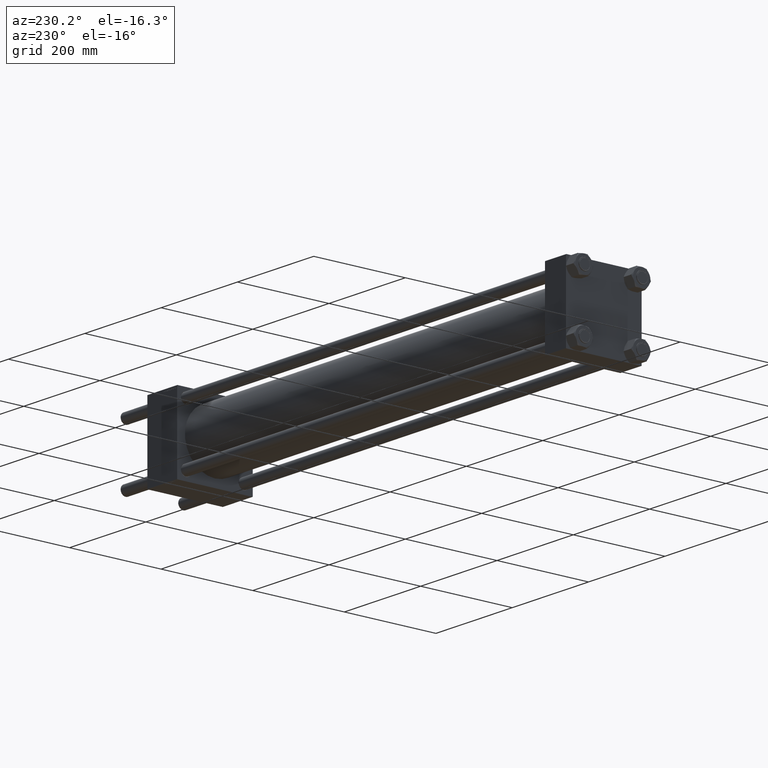
[diagram: clean part render]
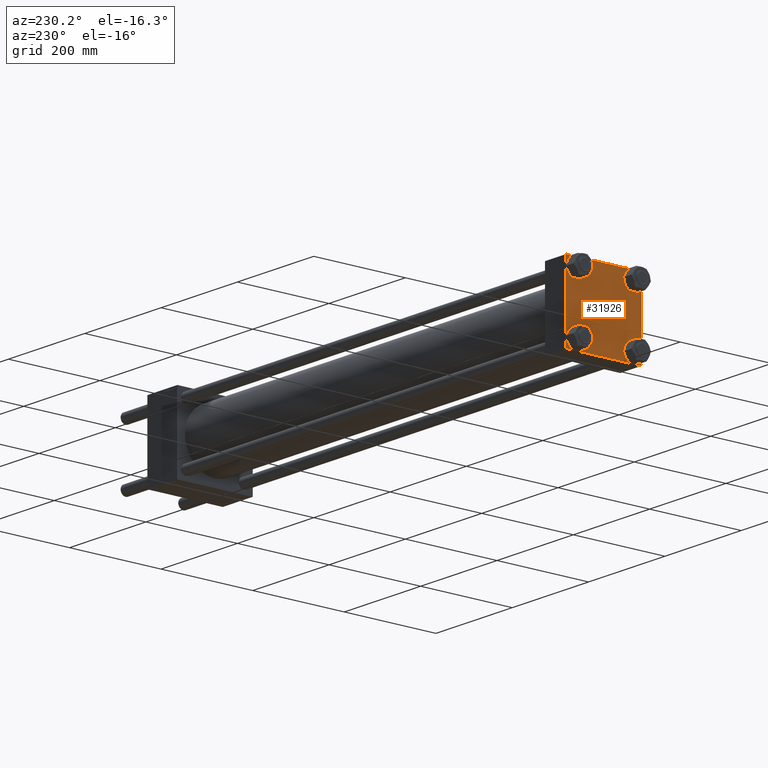
[diagram: same view with one face highlighted and labeled with its STEP entity id]
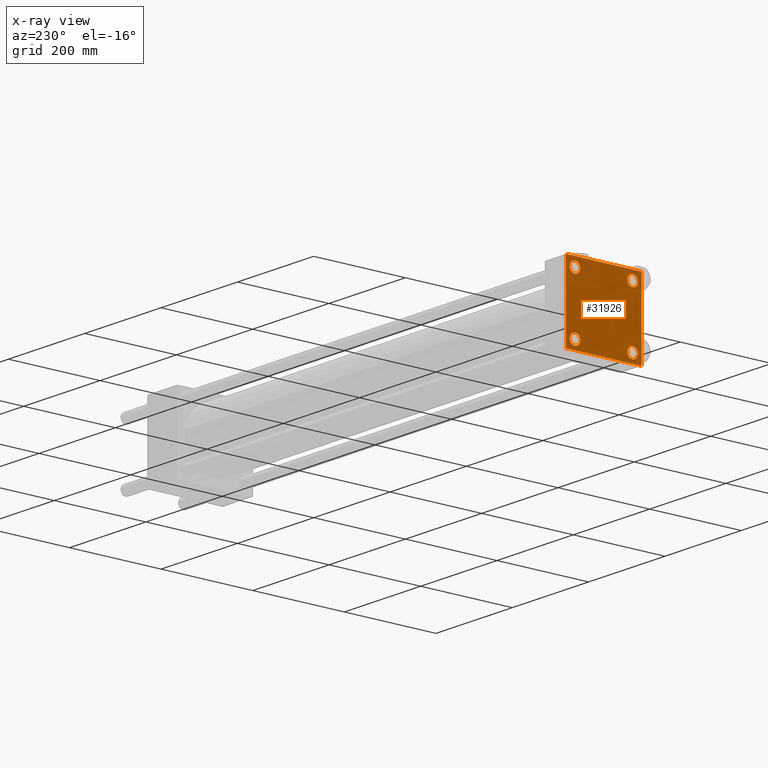
[diagram: x-ray of the same camera — body ghosted, the highlighted face saturated]
A machine part, auxiliary view. The second image highlights one B-rep face of the part: STEP entity #31926.
The next image is the same camera in x-ray: the body ghosted, the highlighted face saturated — about 0% of this face is hidden behind the body in this view.
In plain terms, the highlighted planar face has unit normal (-1, 0, 0).
Its self-contained STEP definition (entity closure, byte-faithful):
#1649 = CARTESIAN_POINT ( 'NONE',  ( 0.000000000000000000, 62.95000000000000284, -74.45000000000001705 ) ) ;
#2429 = DIRECTION ( 'NONE',  ( 1.000000000000000000, -0.000000000000000000, -0.000000000000000000 ) ) ;
#2689 = DIRECTION ( 'NONE',  ( 0.000000000000000000, 0.000000000000000000, 1.000000000000000000 ) ) ;
#2751 = VECTOR ( 'NONE', #7106, 1000.000000000000000 ) ;
#2949 = EDGE_CURVE ( 'NONE', #44777, #45989, #53933, .T. ) ;
#3088 = AXIS2_PLACEMENT_3D ( 'NONE', #30432, #4379, #39402 ) ;
#4139 = CARTESIAN_POINT ( 'NONE',  ( 0.000000000000000000, -81.99999999999997158, 82.50000000000001421 ) ) ;
#4379 = DIRECTION ( 'NONE',  ( 1.000000000000000000, -0.000000000000000000, -0.000000000000000000 ) ) ;
#4753 = CIRCLE ( 'NONE', #56531, 11.50000000000001066 ) ;
#5536 = DIRECTION ( 'NONE',  ( 0.000000000000000000, 0.000000000000000000, 1.000000000000000000 ) ) ;
#5625 = CARTESIAN_POINT ( 'NONE',  ( 0.000000000000000000, 82.50000000000002842, -82.00000000000000000 ) ) ;
#5805 = VECTOR ( 'NONE', #37496, 1000.000000000000114 ) ;
#6767 = CARTESIAN_POINT ( 'NONE',  ( 0.000000000000000000, -62.94999999999998153, -74.45000000000003126 ) ) ;
#7106 = DIRECTION ( 'NONE',  ( 0.000000000000000000, -1.000000000000000000, -8.410780489584519171E-17 ) ) ;
#7180 = EDGE_CURVE ( 'NONE', #55454, #25309, #18062, .T. ) ;
#8149 = VERTEX_POINT ( 'NONE', #41269 ) ;
#8839 = CARTESIAN_POINT ( 'NONE',  ( 0.000000000000000000, 62.95000000000000284, 62.95000000000000284 ) ) ;
#9852 = ORIENTED_EDGE ( 'NONE', *, *, #55303, .T. ) ;
#10263 = AXIS2_PLACEMENT_3D ( 'NONE', #42340, #47258, #2689 ) ;
#11157 = CARTESIAN_POINT ( 'NONE',  ( 0.000000000000000000, 82.50000000000002842, 82.50000000000002842 ) ) ;
#11679 = VECTOR ( 'NONE', #48626, 1000.000000000000114 ) ;
#12366 = ORIENTED_EDGE ( 'NONE', *, *, #44668, .T. ) ;
#12759 = AXIS2_PLACEMENT_3D ( 'NONE', #54523, #32249, #14864 ) ;
#12880 = DIRECTION ( 'NONE',  ( 0.000000000000000000, -0.7071067811865376918, 0.7071067811865574537 ) ) ;
#13303 = LINE ( 'NONE', #43993, #11679 ) ;
#13342 = CIRCLE ( 'NONE', #54936, 11.50000000000001066 ) ;
#14864 = DIRECTION ( 'NONE',  ( 0.000000000000000000, 0.000000000000000000, 1.000000000000000000 ) ) ;
#15322 = EDGE_CURVE ( 'NONE', #55454, #46420, #48899, .T. ) ;
#15656 = EDGE_CURVE ( 'NONE', #31737, #53904, #57212, .T. ) ;
#15997 = FACE_OUTER_BOUND ( 'NONE', #28871, .T. ) ;
#16026 = CARTESIAN_POINT ( 'NONE',  ( 0.000000000000000000, -62.94999999999998153, -62.95000000000001705 ) ) ;
#16288 = FACE_BOUND ( 'NONE', #16854, .T. ) ;
#16854 = EDGE_LOOP ( 'NONE', ( #12366, #51237 ) ) ;
#16996 = ORIENTED_EDGE ( 'NONE', *, *, #22072, .T. ) ;
#16997 = CARTESIAN_POINT ( 'NONE',  ( 0.000000000000000000, -82.49999999999997158, 82.00000000000001421 ) ) ;
#17049 = DIRECTION ( 'NONE',  ( 0.000000000000000000, 0.000000000000000000, -1.000000000000000000 ) ) ;
#17233 = LINE ( 'NONE', #34903, #54382 ) ;
#17338 = LINE ( 'NONE', #35294, #27997 ) ;
#17570 = CARTESIAN_POINT ( 'NONE',  ( 0.000000000000000000, -62.94999999999998153, -62.95000000000001705 ) ) ;
#17722 = VERTEX_POINT ( 'NONE', #26454 ) ;
#17787 = DIRECTION ( 'NONE',  ( 1.000000000000000000, -0.000000000000000000, -0.000000000000000000 ) ) ;
#18062 = LINE ( 'NONE', #22962, #46662 ) ;
#18617 = DIRECTION ( 'NONE',  ( -0.000000000000000000, 0.7071067811865474617, 0.7071067811865474617 ) ) ;
#18857 = CARTESIAN_POINT ( 'NONE',  ( 0.000000000000000000, 62.95000000000000284, -51.44999999999999574 ) ) ;
#19099 = ORIENTED_EDGE ( 'NONE', *, *, #7180, .T. ) ;
#19925 = EDGE_CURVE ( 'NONE', #45989, #44777, #44146, .T. ) ;
#20081 = DIRECTION ( 'NONE',  ( 0.000000000000000000, 0.000000000000000000, 1.000000000000000000 ) ) ;
#21208 = EDGE_LOOP ( 'NONE', ( #16996, #27164 ) ) ;
#21264 = ORIENTED_EDGE ( 'NONE', *, *, #19925, .T. ) ;
#21381 = ORIENTED_EDGE ( 'NONE', *, *, #23423, .T. ) ;
#21820 = CARTESIAN_POINT ( 'NONE',  ( 0.000000000000000000, 62.95000000000000284, 51.44999999999999574 ) ) ;
#21823 = VECTOR ( 'NONE', #45116, 1000.000000000000000 ) ;
#21902 = DIRECTION ( 'NONE',  ( 0.000000000000000000, -1.000000000000000000, -1.682156097916903588E-16 ) ) ;
#22072 = EDGE_CURVE ( 'NONE', #36019, #40122, #50667, .T. ) ;
#22624 = EDGE_CURVE ( 'NONE', #53904, #46420, #17233, .T. ) ;
#22910 = DIRECTION ( 'NONE',  ( 1.000000000000000000, -0.000000000000000000, -0.000000000000000000 ) ) ;
#22962 = CARTESIAN_POINT ( 'NONE',  ( 0.000000000000000000, -82.25000000000000000, 82.25000000000000000 ) ) ;
#23074 = CIRCLE ( 'NONE', #51771, 11.50000000000001066 ) ;
#23423 = EDGE_CURVE ( 'NONE', #24143, #17722, #46213, .T. ) ;
#23757 = AXIS2_PLACEMENT_3D ( 'NONE', #31050, #53607, #5536 ) ;
#23985 = EDGE_CURVE ( 'NONE', #46224, #29000, #23074, .T. ) ;
#24143 = VERTEX_POINT ( 'NONE', #56041 ) ;
#24163 = EDGE_CURVE ( 'NONE', #8149, #25309, #42130, .T. ) ;
#24242 = ORIENTED_EDGE ( 'NONE', *, *, #41180, .T. ) ;
#25309 = VERTEX_POINT ( 'NONE', #4139 ) ;
#25328 = ORIENTED_EDGE ( 'NONE', *, *, #15322, .F. ) ;
#26223 = VERTEX_POINT ( 'NONE', #5625 ) ;
#26454 = CARTESIAN_POINT ( 'NONE',  ( 0.000000000000000000, -62.94999999999998153, 74.45000000000003126 ) ) ;
#27164 = ORIENTED_EDGE ( 'NONE', *, *, #46170, .T. ) ;
#27997 = VECTOR ( 'NONE', #17049, 1000.000000000000000 ) ;
#28732 = PLANE ( 'NONE',  #10263 ) ;
#28871 = EDGE_LOOP ( 'NONE', ( #40825, #9852, #44043, #44268, #25328, #19099, #45630, #24242 ) ) ;
#29000 = VERTEX_POINT ( 'NONE', #55784 ) ;
#29945 = AXIS2_PLACEMENT_3D ( 'NONE', #16026, #2429, #20081 ) ;
#30432 = CARTESIAN_POINT ( 'NONE',  ( 0.000000000000000000, 62.95000000000000284, -62.95000000000000284 ) ) ;
#30485 = AXIS2_PLACEMENT_3D ( 'NONE', #49258, #22910, #38926 ) ;
#30714 = ORIENTED_EDGE ( 'NONE', *, *, #2949, .T. ) ;
#31050 = CARTESIAN_POINT ( 'NONE',  ( 0.000000000000000000, 62.95000000000000284, -62.95000000000000284 ) ) ;
#31708 = DIRECTION ( 'NONE',  ( 0.000000000000000000, 0.000000000000000000, 1.000000000000000000 ) ) ;
#31737 = VERTEX_POINT ( 'NONE', #37148 ) ;
#31926 = ADVANCED_FACE ( 'NONE', ( #52167, #16288, #33368, #34230, #15997 ), #28732, .T. ) ;
#32249 = DIRECTION ( 'NONE',  ( 1.000000000000000000, -0.000000000000000000, -0.000000000000000000 ) ) ;
#32404 = EDGE_CURVE ( 'NONE', #17722, #24143, #4753, .T. ) ;
#32859 = LINE ( 'NONE', #37776, #5805 ) ;
#33368 = FACE_BOUND ( 'NONE', #43693, .T. ) ;
#34230 = FACE_BOUND ( 'NONE', #21208, .T. ) ;
#34587 = CARTESIAN_POINT ( 'NONE',  ( 0.000000000000000000, 62.95000000000000284, 74.45000000000001705 ) ) ;
#34903 = CARTESIAN_POINT ( 'NONE',  ( 0.000000000000000000, -82.25000000000115108, -82.24999999999886313 ) ) ;
#35239 = DIRECTION ( 'NONE',  ( 0.000000000000000000, 0.000000000000000000, 1.000000000000000000 ) ) ;
#35294 = CARTESIAN_POINT ( 'NONE',  ( 0.000000000000000000, 82.50000000000002842, 82.50000000000002842 ) ) ;
#36019 = VERTEX_POINT ( 'NONE', #34587 ) ;
#36422 = CARTESIAN_POINT ( 'NONE',  ( 0.000000000000000000, 82.50000000000002842, 82.00000000000005684 ) ) ;
#36446 = CIRCLE ( 'NONE', #29945, 11.50000000000001066 ) ;
#36526 = CARTESIAN_POINT ( 'NONE',  ( 0.000000000000000000, -82.00000000000000000, -82.50000000000000000 ) ) ;
#37148 = CARTESIAN_POINT ( 'NONE',  ( 0.000000000000000000, 82.00000000000005684, -82.49999999999997158 ) ) ;
#37496 = DIRECTION ( 'NONE',  ( 0.000000000000000000, 0.7071067811865474617, -0.7071067811865474617 ) ) ;
#37776 = CARTESIAN_POINT ( 'NONE',  ( 0.000000000000000000, 82.25000000000002842, 82.25000000000002842 ) ) ;
#38926 = DIRECTION ( 'NONE',  ( 0.000000000000000000, 0.000000000000000000, 1.000000000000000000 ) ) ;
#39402 = DIRECTION ( 'NONE',  ( 0.000000000000000000, 0.000000000000000000, 1.000000000000000000 ) ) ;
#39508 = CARTESIAN_POINT ( 'NONE',  ( 0.000000000000000000, -62.94999999999998153, 62.95000000000001705 ) ) ;
#39847 = CARTESIAN_POINT ( 'NONE',  ( 0.000000000000000000, 82.50000000000002842, -82.49999999999997158 ) ) ;
#40122 = VERTEX_POINT ( 'NONE', #21820 ) ;
#40825 = ORIENTED_EDGE ( 'NONE', *, *, #41552, .T. ) ;
#40870 = VERTEX_POINT ( 'NONE', #36422 ) ;
#41180 = EDGE_CURVE ( 'NONE', #8149, #40870, #32859, .T. ) ;
#41269 = CARTESIAN_POINT ( 'NONE',  ( 0.000000000000000000, 82.00000000000005684, 82.50000000000002842 ) ) ;
#41552 = EDGE_CURVE ( 'NONE', #40870, #26223, #17338, .T. ) ;
#42130 = LINE ( 'NONE', #11157, #2751 ) ;
#42340 = CARTESIAN_POINT ( 'NONE',  ( 0.000000000000000000, 0.000000000000000000, 0.000000000000000000 ) ) ;
#43068 = VECTOR ( 'NONE', #21902, 1000.000000000000000 ) ;
#43235 = CARTESIAN_POINT ( 'NONE',  ( 0.000000000000000000, -82.50000000000000000, -81.99999999999998579 ) ) ;
#43693 = EDGE_LOOP ( 'NONE', ( #30714, #21264 ) ) ;
#43993 = CARTESIAN_POINT ( 'NONE',  ( 0.000000000000000000, 82.25000000000001421, -82.25000000000001421 ) ) ;
#44043 = ORIENTED_EDGE ( 'NONE', *, *, #15656, .T. ) ;
#44146 = CIRCLE ( 'NONE', #23757, 11.50000000000001066 ) ;
#44268 = ORIENTED_EDGE ( 'NONE', *, *, #22624, .T. ) ;
#44668 = EDGE_CURVE ( 'NONE', #29000, #46224, #36446, .T. ) ;
#44777 = VERTEX_POINT ( 'NONE', #18857 ) ;
#45116 = DIRECTION ( 'NONE',  ( 0.000000000000000000, -1.682156097916903588E-16, -1.000000000000000000 ) ) ;
#45630 = ORIENTED_EDGE ( 'NONE', *, *, #24163, .F. ) ;
#45989 = VERTEX_POINT ( 'NONE', #1649 ) ;
#46170 = EDGE_CURVE ( 'NONE', #40122, #36019, #13342, .T. ) ;
#46213 = CIRCLE ( 'NONE', #30485, 11.50000000000001066 ) ;
#46224 = VERTEX_POINT ( 'NONE', #6767 ) ;
#46420 = VERTEX_POINT ( 'NONE', #43235 ) ;
#46662 = VECTOR ( 'NONE', #18617, 1000.000000000000114 ) ;
#47258 = DIRECTION ( 'NONE',  ( -1.000000000000000000, 0.000000000000000000, 0.000000000000000000 ) ) ;
#48552 = DIRECTION ( 'NONE',  ( 1.000000000000000000, -0.000000000000000000, -0.000000000000000000 ) ) ;
#48626 = DIRECTION ( 'NONE',  ( -0.000000000000000000, -0.7071067811865474617, -0.7071067811865474617 ) ) ;
#48899 = LINE ( 'NONE', #49181, #21823 ) ;
#49181 = CARTESIAN_POINT ( 'NONE',  ( 0.000000000000000000, -82.49999999999997158, 82.50000000000001421 ) ) ;
#49258 = CARTESIAN_POINT ( 'NONE',  ( 0.000000000000000000, -62.94999999999998153, 62.95000000000001705 ) ) ;
#50531 = ORIENTED_EDGE ( 'NONE', *, *, #32404, .T. ) ;
#50667 = CIRCLE ( 'NONE', #12759, 11.50000000000001066 ) ;
#51237 = ORIENTED_EDGE ( 'NONE', *, *, #23985, .T. ) ;
#51771 = AXIS2_PLACEMENT_3D ( 'NONE', #17570, #48552, #35239 ) ;
#52167 = FACE_BOUND ( 'NONE', #53696, .T. ) ;
#53112 = DIRECTION ( 'NONE',  ( 0.000000000000000000, 0.000000000000000000, 1.000000000000000000 ) ) ;
#53607 = DIRECTION ( 'NONE',  ( 1.000000000000000000, -0.000000000000000000, -0.000000000000000000 ) ) ;
#53696 = EDGE_LOOP ( 'NONE', ( #50531, #21381 ) ) ;
#53904 = VERTEX_POINT ( 'NONE', #36526 ) ;
#53933 = CIRCLE ( 'NONE', #3088, 11.50000000000001066 ) ;
#53985 = DIRECTION ( 'NONE',  ( 1.000000000000000000, -0.000000000000000000, -0.000000000000000000 ) ) ;
#54382 = VECTOR ( 'NONE', #12880, 999.9999999999998863 ) ;
#54523 = CARTESIAN_POINT ( 'NONE',  ( 0.000000000000000000, 62.95000000000000284, 62.95000000000000284 ) ) ;
#54936 = AXIS2_PLACEMENT_3D ( 'NONE', #8839, #53985, #31708 ) ;
#55303 = EDGE_CURVE ( 'NONE', #26223, #31737, #13303, .T. ) ;
#55454 = VERTEX_POINT ( 'NONE', #16997 ) ;
#55784 = CARTESIAN_POINT ( 'NONE',  ( 0.000000000000000000, -62.94999999999998153, -51.45000000000000995 ) ) ;
#56041 = CARTESIAN_POINT ( 'NONE',  ( 0.000000000000000000, -62.94999999999998153, 51.45000000000000995 ) ) ;
#56531 = AXIS2_PLACEMENT_3D ( 'NONE', #39508, #17787, #53112 ) ;
#57212 = LINE ( 'NONE', #39847, #43068 ) ;